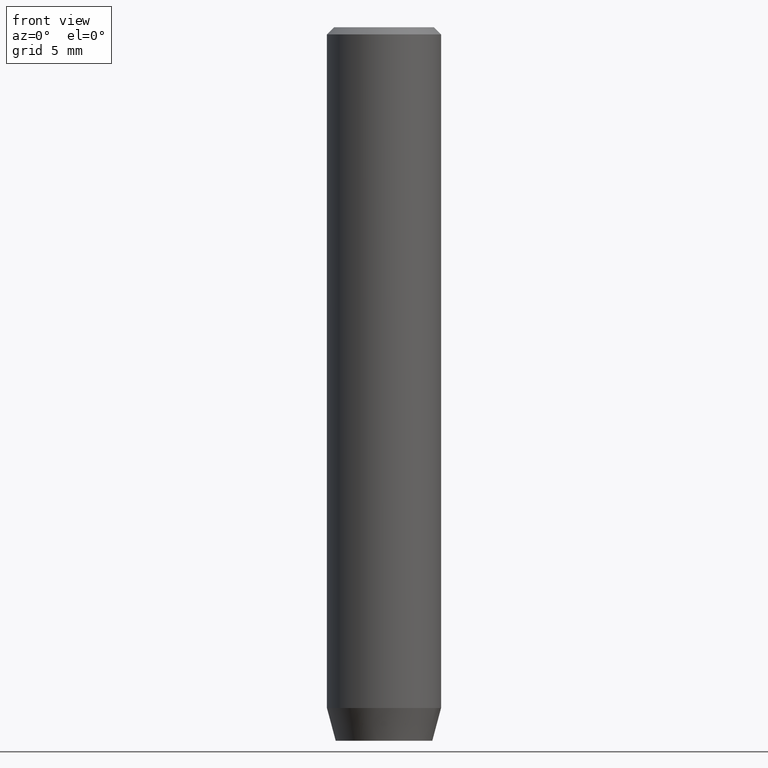
[diagram: clean part render]
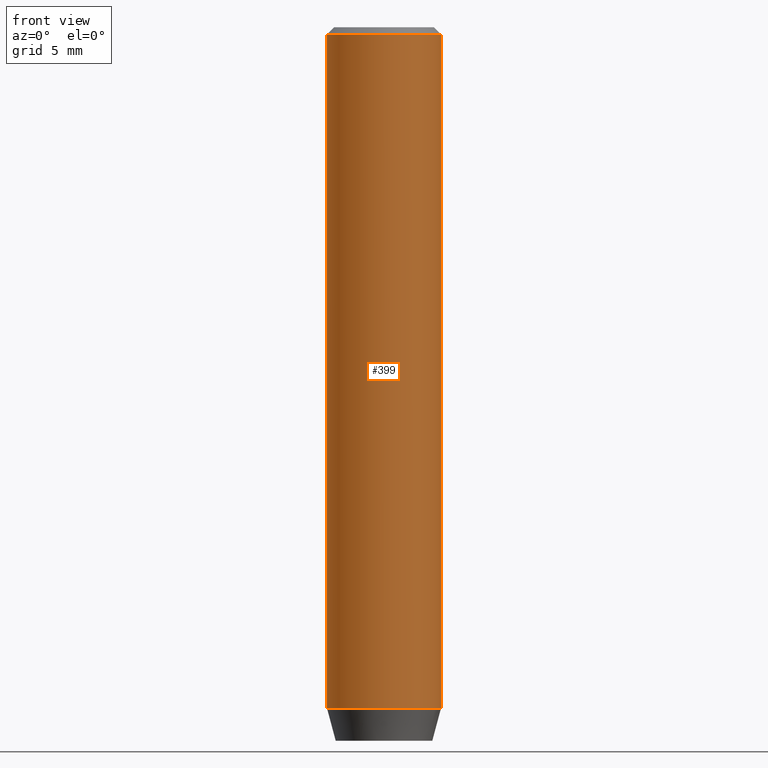
[diagram: same view with one face highlighted and labeled with its STEP entity id]
A machine part, front view. The second image highlights one B-rep face of the part: STEP entity #399.
In plain terms, the highlighted cylindrical surface (partial cylindrical patch) has radius 4 mm, axis along (-0, -0, 1).
Its self-contained STEP definition (entity closure, byte-faithful):
#12 = CARTESIAN_POINT ( 'NONE',  ( 4.000000000000000000, 0.000000000000000000, -47.70000000000000284 ) ) ;
#42 = AXIS2_PLACEMENT_3D ( 'NONE', #379, #250, #434 ) ;
#49 = EDGE_CURVE ( 'NONE', #197, #475, #401, .T. ) ;
#70 = DIRECTION ( 'NONE',  ( -0.000000000000000000, -0.000000000000000000, 1.000000000000000000 ) ) ;
#72 = EDGE_CURVE ( 'NONE', #185, #117, #534, .T. ) ;
#78 = CIRCLE ( 'NONE', #88, 4.000000000000000000 ) ;
#84 = CARTESIAN_POINT ( 'NONE',  ( -4.000000000000000000, 4.898587196589412829E-16, -0.5000000000000108802 ) ) ;
#88 = AXIS2_PLACEMENT_3D ( 'NONE', #429, #344, #110 ) ;
#89 = ORIENTED_EDGE ( 'NONE', *, *, #349, .T. ) ;
#106 = CIRCLE ( 'NONE', #170, 4.000000000000000000 ) ;
#110 = DIRECTION ( 'NONE',  ( 1.000000000000000000, 0.000000000000000000, 0.000000000000000000 ) ) ;
#117 = VERTEX_POINT ( 'NONE', #84 ) ;
#149 = ORIENTED_EDGE ( 'NONE', *, *, #445, .T. ) ;
#153 = VECTOR ( 'NONE', #355, 1000.000000000000000 ) ;
#156 = CARTESIAN_POINT ( 'NONE',  ( 0.000000000000000000, 0.000000000000000000, -47.70000000000000284 ) ) ;
#166 = DIRECTION ( 'NONE',  ( -0.000000000000000000, -0.000000000000000000, 1.000000000000000000 ) ) ;
#170 = AXIS2_PLACEMENT_3D ( 'NONE', #156, #70, #341 ) ;
#185 = VERTEX_POINT ( 'NONE', #230 ) ;
#196 = FACE_OUTER_BOUND ( 'NONE', #282, .T. ) ;
#197 = VERTEX_POINT ( 'NONE', #12 ) ;
#198 = CYLINDRICAL_SURFACE ( 'NONE', #42, 4.000000000000000000 ) ;
#230 = CARTESIAN_POINT ( 'NONE',  ( -4.000000000000000000, 4.898587196589412829E-16, -47.70000000000000284 ) ) ;
#231 = ORIENTED_EDGE ( 'NONE', *, *, #49, .T. ) ;
#250 = DIRECTION ( 'NONE',  ( -0.000000000000000000, -0.000000000000000000, 1.000000000000000000 ) ) ;
#282 = EDGE_LOOP ( 'NONE', ( #569, #89, #231, #149 ) ) ;
#341 = DIRECTION ( 'NONE',  ( 1.000000000000000000, 0.000000000000000000, 0.000000000000000000 ) ) ;
#344 = DIRECTION ( 'NONE',  ( 0.000000000000000000, 0.000000000000000000, -1.000000000000000000 ) ) ;
#349 = EDGE_CURVE ( 'NONE', #185, #197, #106, .T. ) ;
#355 = DIRECTION ( 'NONE',  ( -0.000000000000000000, -0.000000000000000000, 1.000000000000000000 ) ) ;
#379 = CARTESIAN_POINT ( 'NONE',  ( 0.000000000000000000, 0.000000000000000000, 0.000000000000000000 ) ) ;
#399 = ADVANCED_FACE ( 'NONE', ( #196 ), #198, .T. ) ;
#401 = LINE ( 'NONE', #403, #539 ) ;
#403 = CARTESIAN_POINT ( 'NONE',  ( 4.000000000000000000, 0.000000000000000000, 0.000000000000000000 ) ) ;
#429 = CARTESIAN_POINT ( 'NONE',  ( 0.000000000000000000, 0.000000000000000000, -0.5000000000000108802 ) ) ;
#434 = DIRECTION ( 'NONE',  ( 1.000000000000000000, 0.000000000000000000, 0.000000000000000000 ) ) ;
#445 = EDGE_CURVE ( 'NONE', #475, #117, #78, .T. ) ;
#475 = VERTEX_POINT ( 'NONE', #579 ) ;
#534 = LINE ( 'NONE', #580, #153 ) ;
#539 = VECTOR ( 'NONE', #166, 1000.000000000000000 ) ;
#569 = ORIENTED_EDGE ( 'NONE', *, *, #72, .F. ) ;
#579 = CARTESIAN_POINT ( 'NONE',  ( 4.000000000000000000, 0.000000000000000000, -0.5000000000000108802 ) ) ;
#580 = CARTESIAN_POINT ( 'NONE',  ( -4.000000000000000000, 4.898587196589412829E-16, 0.000000000000000000 ) ) ;